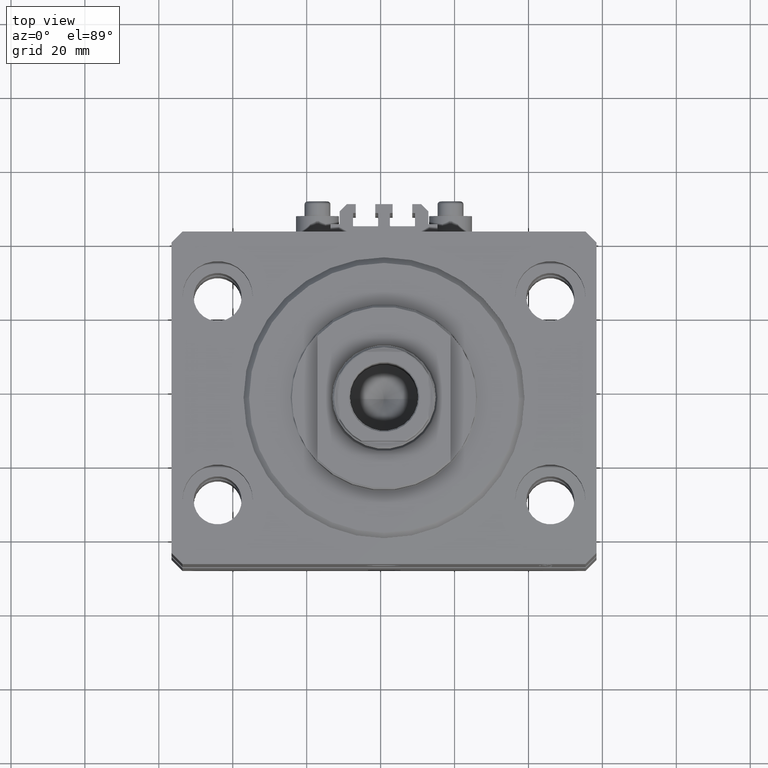
[diagram: clean part render]
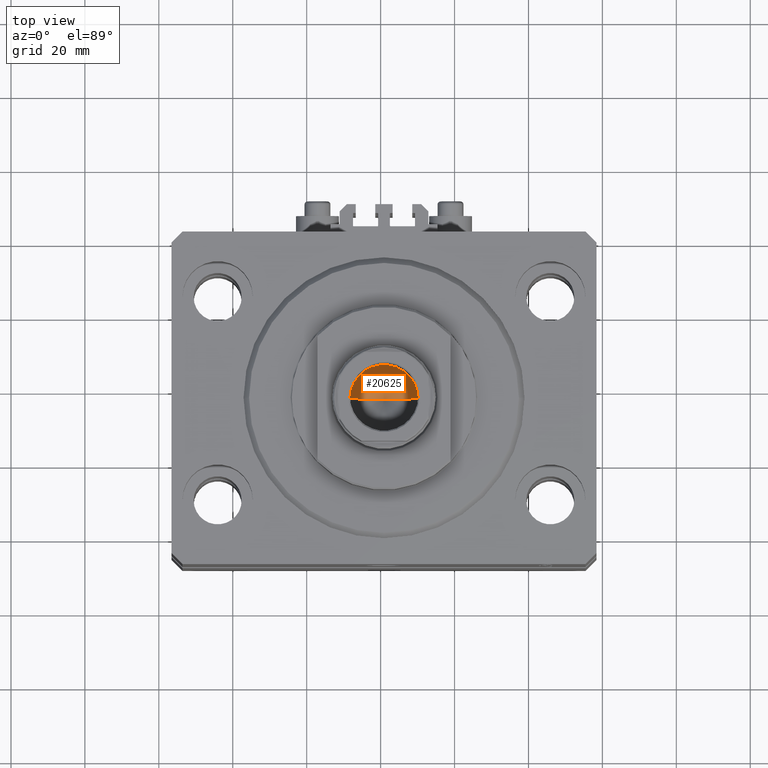
[diagram: same view with one face highlighted and labeled with its STEP entity id]
A machine part, top view. The second image highlights one B-rep face of the part: STEP entity #20625.
In plain terms, the highlighted conical surface has half-angle 59 deg.
Its self-contained STEP definition (entity closure, byte-faithful):
#1719 = CARTESIAN_POINT ( 'NONE',  ( 0.000000000000000000, 0.000000000000000000, 74.09999999999999432 ) ) ;
#5897 = AXIS2_PLACEMENT_3D ( 'NONE', #1719, #47718, #13668 ) ;
#6357 = DIRECTION ( 'NONE',  ( -0.000000000000000000, -0.000000000000000000, 1.000000000000000000 ) ) ;
#7072 = VERTEX_POINT ( 'NONE', #12757 ) ;
#8291 = CIRCLE ( 'NONE', #5897, 9.249999999999994671 ) ;
#11765 = DIRECTION ( 'NONE',  ( 0.8571673007021117785, 0.000000000000000000, 0.5150380749100550437 ) ) ;
#12757 = CARTESIAN_POINT ( 'NONE',  ( -9.249999999999994671, 1.132798289211300909E-15, 74.09999999999999432 ) ) ;
#13668 = DIRECTION ( 'NONE',  ( 1.000000000000000000, 0.000000000000000000, 0.000000000000000000 ) ) ;
#18345 = LINE ( 'NONE', #22066, #42572 ) ;
#20625 = ADVANCED_FACE ( 'NONE', ( #36951 ), #29671, .F. ) ;
#21075 = EDGE_CURVE ( 'NONE', #23013, #44082, #35125, .T. ) ;
#21900 = CARTESIAN_POINT ( 'NONE',  ( -1.046994375366439223E-14, 0.000000000000000000, 68.54203927399505858 ) ) ;
#22066 = CARTESIAN_POINT ( 'NONE',  ( -9.249999999999994671, 1.132798289211300909E-15, 74.09999999999999432 ) ) ;
#22318 = DIRECTION ( 'NONE',  ( -0.8571673007021117785, 1.049727191138617956E-16, 0.5150380749100550437 ) ) ;
#23013 = VERTEX_POINT ( 'NONE', #21900 ) ;
#24866 = AXIS2_PLACEMENT_3D ( 'NONE', #32724, #6357, #35968 ) ;
#29671 = CONICAL_SURFACE ( 'NONE', #24866, 9.249999999999994671, 1.029744258676653423 ) ;
#30770 = CARTESIAN_POINT ( 'NONE',  ( 9.249999999999994671, 0.000000000000000000, 74.09999999999999432 ) ) ;
#32724 = CARTESIAN_POINT ( 'NONE',  ( 0.000000000000000000, 0.000000000000000000, 74.09999999999999432 ) ) ;
#35125 = LINE ( 'NONE', #46067, #39211 ) ;
#35968 = DIRECTION ( 'NONE',  ( 1.000000000000000000, 0.000000000000000000, 0.000000000000000000 ) ) ;
#36951 = FACE_OUTER_BOUND ( 'NONE', #43054, .T. ) ;
#37419 = ORIENTED_EDGE ( 'NONE', *, *, #21075, .T. ) ;
#38012 = ORIENTED_EDGE ( 'NONE', *, *, #38694, .T. ) ;
#38694 = EDGE_CURVE ( 'NONE', #44082, #7072, #8291, .T. ) ;
#39211 = VECTOR ( 'NONE', #11765, 1000.000000000000000 ) ;
#39782 = ORIENTED_EDGE ( 'NONE', *, *, #43030, .F. ) ;
#42572 = VECTOR ( 'NONE', #22318, 1000.000000000000000 ) ;
#43030 = EDGE_CURVE ( 'NONE', #23013, #7072, #18345, .T. ) ;
#43054 = EDGE_LOOP ( 'NONE', ( #39782, #37419, #38012 ) ) ;
#44082 = VERTEX_POINT ( 'NONE', #30770 ) ;
#46067 = CARTESIAN_POINT ( 'NONE',  ( 9.249999999999994671, 0.000000000000000000, 74.09999999999999432 ) ) ;
#47718 = DIRECTION ( 'NONE',  ( -0.000000000000000000, -0.000000000000000000, 1.000000000000000000 ) ) ;